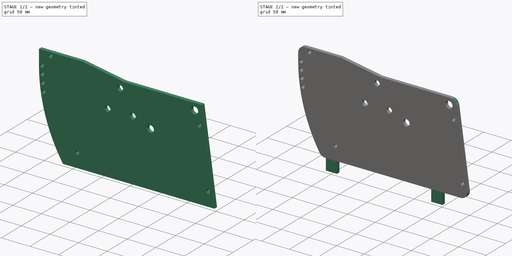
[diagram: build sequence overview — one tinted view per stage of 2, left to right]
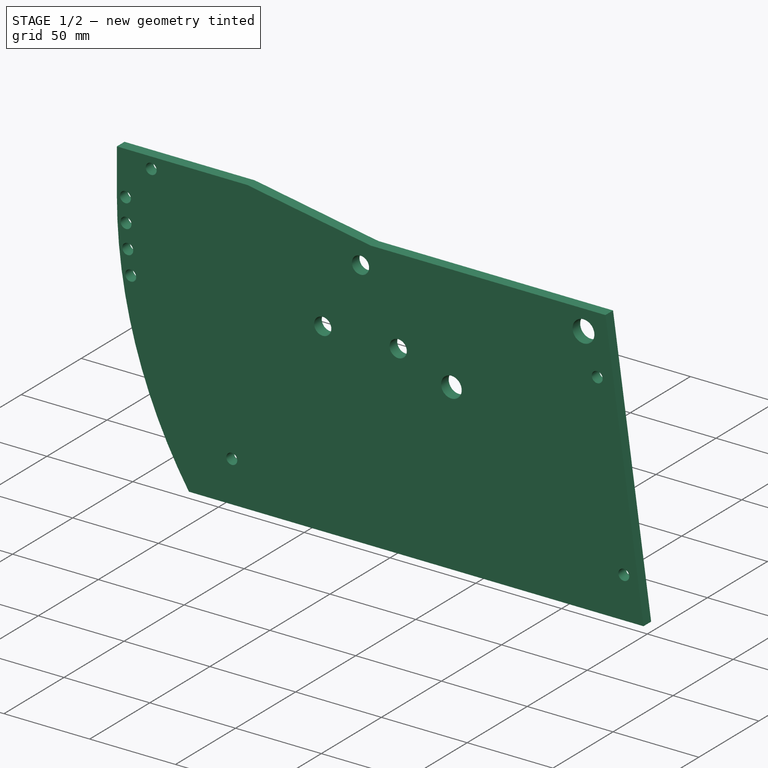
[diagram: stage 1 of 2 — iso view after this stage's code; geometry added in this stage tinted green]
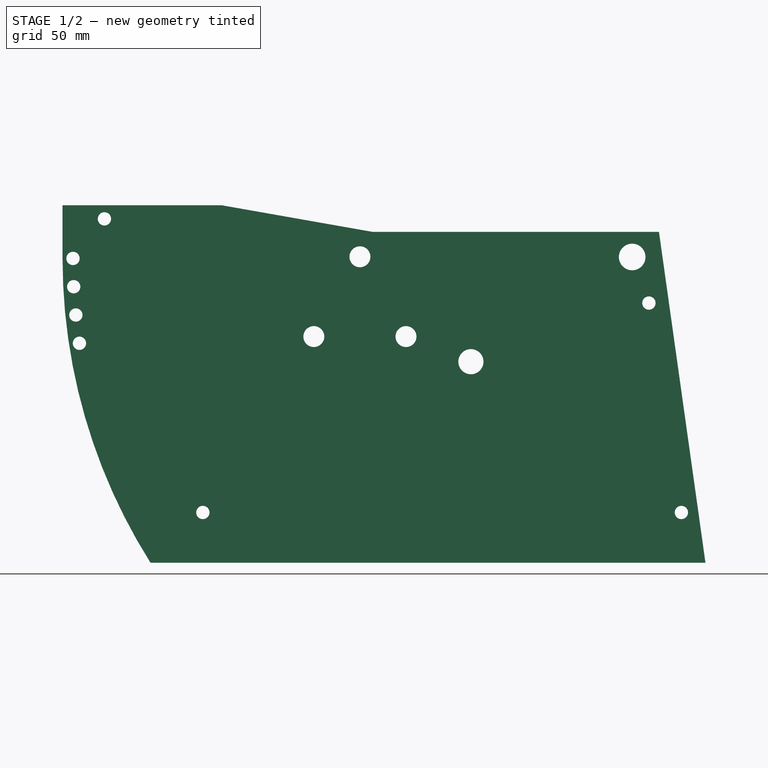
[diagram: stage 1 of 2 — front view after this stage's code; geometry added in this stage tinted green]
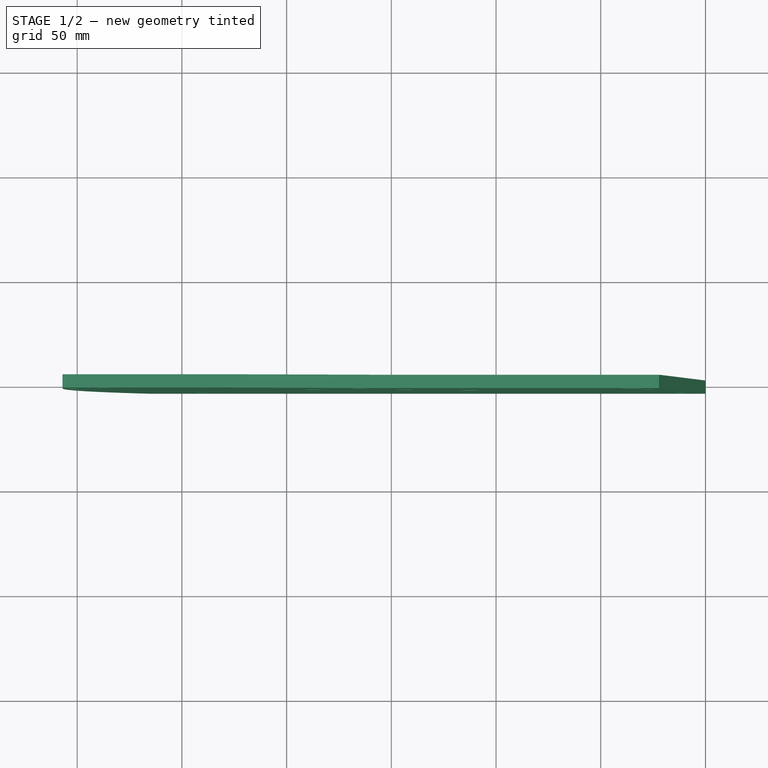
[diagram: stage 1 of 2 — top view after this stage's code; geometry added in this stage tinted green]
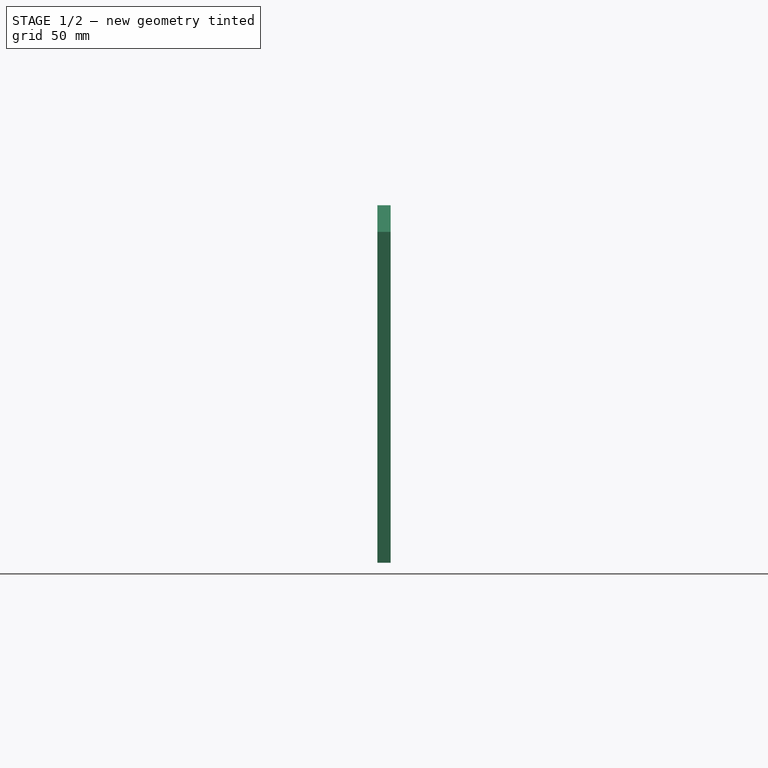
[diagram: stage 1 of 2 — right view after this stage's code; geometry added in this stage tinted green]
FCSTD DOCUMENT  (FreeCAD 0.18R4 (GitTag))
Label: Rib AA
License: All rights reserved
LicenseURL: http://en.wikipedia.org/wiki/All_rights_reserved
objects: Sketcher::SketchObject×3, PartDesign::Pad×2, PartDesign::Pocket×1, PartDesign::Fillet×1, PartDesign::Body×1, App::Part×1
note: 11 computed .brp shape members not serialized (recipe doc carries the construction recipe); baked Part::Feature solids carry a one-line shape summary decoded from their .brp

FEATURE [Sketcher::SketchObject] Sketch
  MapMode = 5
  Placement = pos=(0,0,0) rot=(1,0,0;1.5708rad)
  Support = -> [XZ_Plane001]
  sketch-geometry (7):
    g0: LineSegment StartX=0 StartY=0 StartZ=0 EndX=-22.2055 EndY=158 EndZ=0
    g1: LineSegment StartX=0 StartY=0 StartZ=0 EndX=-265 EndY=0 EndZ=0
    g2: ArcOfCircle CenterX=-35 CenterY=145.203 CenterZ=0 NormalX=0 NormalY=0 NormalZ=1 AngleXU=0 Radius=272 StartAngle=3.14159 EndAngle=3.70472
    g3: LineSegment StartX=-307 StartY=145.203 StartZ=0 EndX=-307 EndY=170.7 EndZ=0
    g4: LineSegment StartX=-307 StartY=170.7 StartZ=0 EndX=-231 EndY=170.7 EndZ=0
    g5: LineSegment StartX=-231 StartY=170.7 StartZ=0 EndX=-159 EndY=158 EndZ=0
    g6: LineSegment StartX=-159 StartY=158 StartZ=0 EndX=-22.2055 EndY=158 EndZ=0
  constraints (20):
    c: Coincident(g-1,g0)
    c: DistanceY(g0,g0) = 158
    c: Coincident(g0,g1)
    c: PointOnObject(g1,g-1)
    c: Coincident(g2,g1)
    c: Vertical(g3)
    c: Coincident(g3,g4)
    c: Horizontal(g4)
    c: Coincident(g4,g5)
    c: Coincident(g5,g6)
    c: Horizontal(g6)
    c: Coincident(g6,g0)
    c: DistanceX(g1,g1) = 265
    c: Angle(g0,g1) = 1.43117
    c: Radius(g2) = 272
    c: Tangent(g3,g2) = 1.5708
    c: DistanceY(g0,g4) = 12.7
    c: DistanceX(g3,g4) = 76
    c: DistanceX(g4,g5) = 72
    c: DistanceX(g3,g0) = 307
FEATURE [PartDesign::Pad] Pad
  Length = 6.35
  Length2 = 100
  Midplane = true
  Placement = pos=(0,0,0) rot=(1,0,0;1.5708rad)
  Profile = -> Sketch
  Refine = true
  Type = 0
FEATURE [Sketcher::SketchObject] Sketch001
  ExternalGeometry = -> [Pad]
  MapMode = 5
  Placement = pos=(0,0,0) rot=(1,0,0;1.5708rad)
  Support = -> [XZ_Plane001]
  sketch-geometry (19):
    g0: Circle [constr] CenterX=-35 CenterY=145.203 CenterZ=0 NormalX=0 NormalY=0 NormalZ=1 AngleXU=0 Radius=267
    g1: Circle CenterX=-302 CenterY=145.3 CenterZ=0 NormalX=0 NormalY=0 NormalZ=1 AngleXU=0 Radius=3.175
    g2: Circle CenterX=-301.663 CenterY=131.8 CenterZ=0 NormalX=0 NormalY=0 NormalZ=1 AngleXU=0 Radius=3.175
    g3: Circle CenterX=-300.641 CenterY=118.3 CenterZ=0 NormalX=0 NormalY=0 NormalZ=1 AngleXU=0 Radius=3.175
    g4: Circle CenterX=-298.925 CenterY=104.8 CenterZ=0 NormalX=0 NormalY=0 NormalZ=1 AngleXU=0 Radius=3.175
    g5: Circle CenterX=-287 CenterY=164.2 CenterZ=0 NormalX=0 NormalY=0 NormalZ=1 AngleXU=0 Radius=3.175
    g6: Circle CenterX=-240 CenterY=24 CenterZ=0 NormalX=0 NormalY=0 NormalZ=1 AngleXU=0 Radius=3.175
    g7: Circle CenterX=-11.5 CenterY=24 CenterZ=0 NormalX=0 NormalY=0 NormalZ=1 AngleXU=0 Radius=3.175
    g8: Circle CenterX=-27 CenterY=124 CenterZ=0 NormalX=0 NormalY=0 NormalZ=1 AngleXU=0 Radius=3.175
    g9: Circle CenterX=-35 CenterY=146 CenterZ=0 NormalX=0 NormalY=0 NormalZ=1 AngleXU=0 Radius=6.35
    g10: Circle CenterX=-187 CenterY=108 CenterZ=0 NormalX=0 NormalY=0 NormalZ=1 AngleXU=0 Radius=5
    g11: Circle CenterX=-143 CenterY=108 CenterZ=0 NormalX=0 NormalY=0 NormalZ=1 AngleXU=0 Radius=5
    g12: Circle [constr] CenterX=-165 CenterY=120.7 CenterZ=0 NormalX=0 NormalY=0 NormalZ=1 AngleXU=0 Radius=5
    g13: Circle CenterX=-165 CenterY=146.1 CenterZ=0 NormalX=0 NormalY=0 NormalZ=1 AngleXU=0 Radius=5
    g14: LineSegment [constr] StartX=-165 StartY=146.1 StartZ=0 EndX=-165 EndY=120.7 EndZ=0
    g15: LineSegment [constr] StartX=-165 StartY=120.7 StartZ=0 EndX=-165 EndY=108 EndZ=0
    g16: LineSegment [constr] StartX=-165 StartY=108 StartZ=0 EndX=-143 EndY=108 EndZ=0
    g17: LineSegment [constr] StartX=-187 StartY=108 StartZ=0 EndX=-165 EndY=108 EndZ=0
    g18: Circle CenterX=-112 CenterY=96 CenterZ=0 NormalX=0 NormalY=0 NormalZ=1 AngleXU=0 Radius=6
  constraints (53):
    c: Radius(g0) = 267
    c: Coincident(g0,g-3)
    c: PointOnObject(g1,g0)
    c: PointOnObject(g3,g0)
    c: Equal(g3,g2)
    c: Equal(g2,g1)
    c: Radius(g1) = 3.175
    c: DistanceY(g1,g-4) = 25.4
    c: PointOnObject(g2,g0)
    c: DistanceY(g2,g1) = 13.5
    c: DistanceY(g3,g2) = 13.5
    c: DistanceY(g4,g3) = 13.5
    c: PointOnObject(g4,g0)
    c: Equal(g4,g3)
    c: DistanceX(g-4,g5) = 20
    c: Equal(g5,g1)
    c: DistanceY(g5,g-4) = 6.5
    c: Vertical(g13,g12)
    c: Coincident(g14,g13)
    c: Coincident(g14,g12)
    c: Coincident(g14,g15)
    c: Vertical(g15)
    c: Coincident(g15,g16)
    c: Coincident(g16,g11)
    c: Coincident(g17,g10)
    c: Coincident(g17,g15)
    c: Horizontal(g17)
    c: Horizontal(g16)
    c: Equal(g16,g17)
    c: DistanceY(g12,g13) = 25.4
    c: DistanceY(g15,g15) = 12.7
    c: DistanceY(g-1,g10) = 108
    c: DistanceX(g15,g-1) = 165
    c: Radius(g13) = 5
    c: Equal(g11,g12)
    c: Equal(g12,g13)
    c: Equal(g13,g10)
    c: DistanceY(g-1,g6) = 24
    c: DistanceX(g6,g-1) = 240
    c: Equal(g6,g4)
    c: Radius(g9) = 6.35
    c: Equal(g8,g5)
    c: Equal(g7,g8)
    c: DistanceY(g-1,g7) = 24
    c: DistanceX(g7,g-1) = 11.5
    c: DistanceY(g-1,g8) = 124
    c: DistanceX(g8,g-1) = 27
    c: DistanceY(g-1,g9) = 146
    c: DistanceX(g9,g-1) = 35
    c: DistanceX(g17,g17) = 22
    c: DistanceX(g18,g-1) = 112
    c: Radius(g18) = 6
    c: DistanceY(g-1,g18) = 96
FEATURE [PartDesign::Pocket] Pocket
  BaseFeature = -> Pad
  Length = 5
  Length2 = 100
  Midplane = true
  Placement = pos=(0,0,0) rot=(1,0,0;1.5708rad)
  Profile = -> Sketch001
  Refine = true
  Type = 1
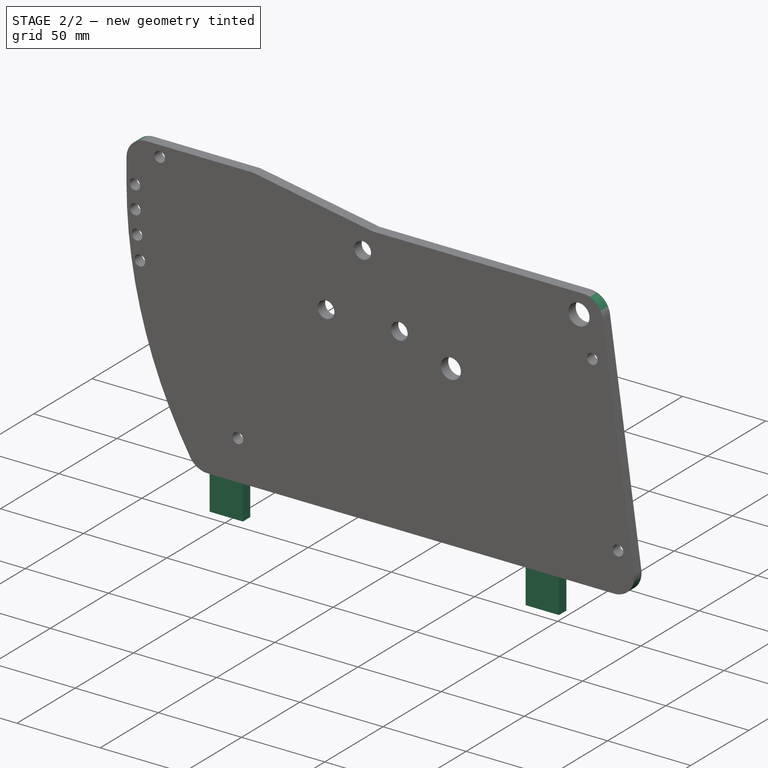
[diagram: stage 2 of 2 — iso view after this stage's code; geometry added in this stage tinted green]
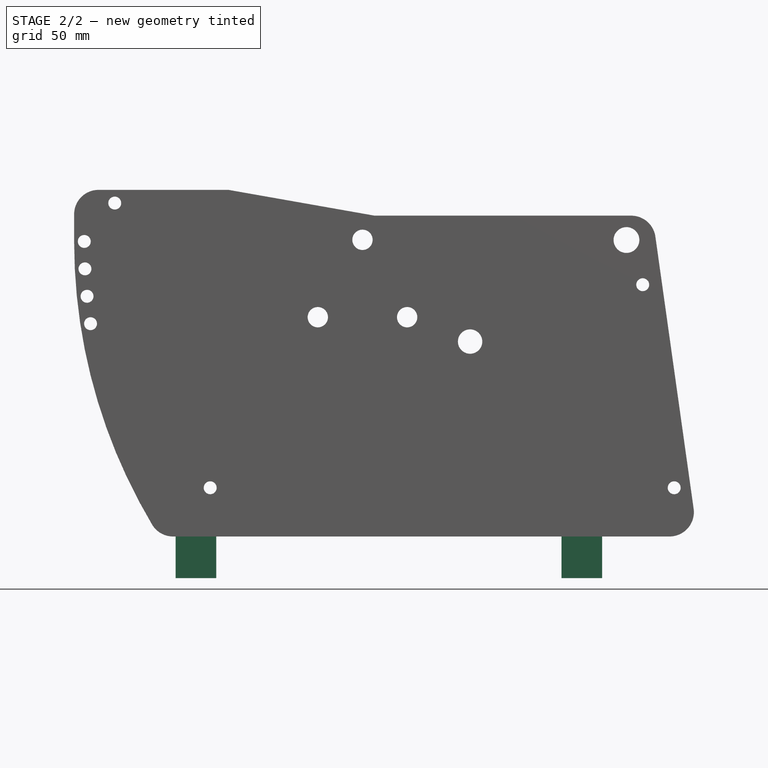
[diagram: stage 2 of 2 — front view after this stage's code; geometry added in this stage tinted green]
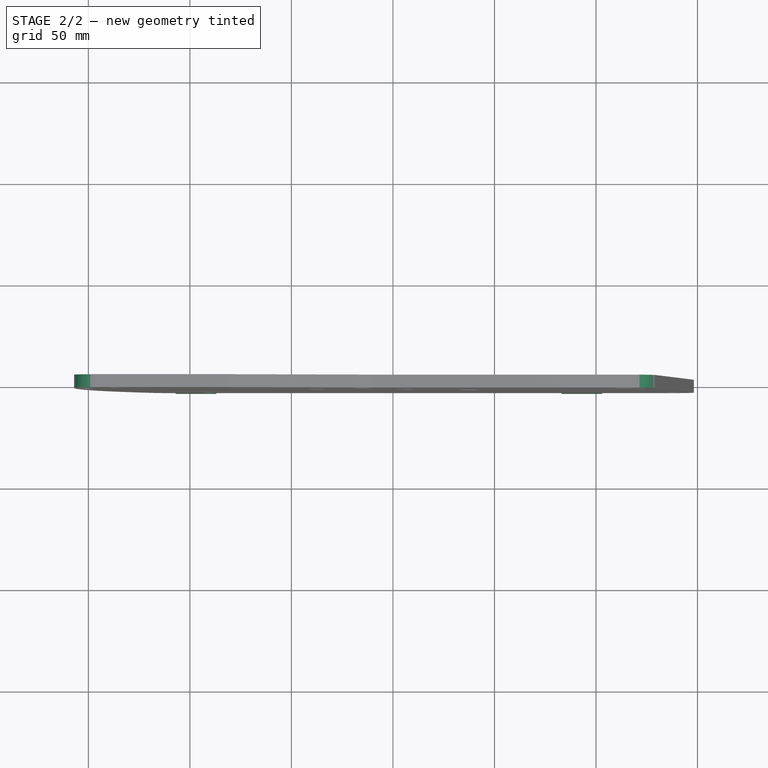
[diagram: stage 2 of 2 — top view after this stage's code; geometry added in this stage tinted green]
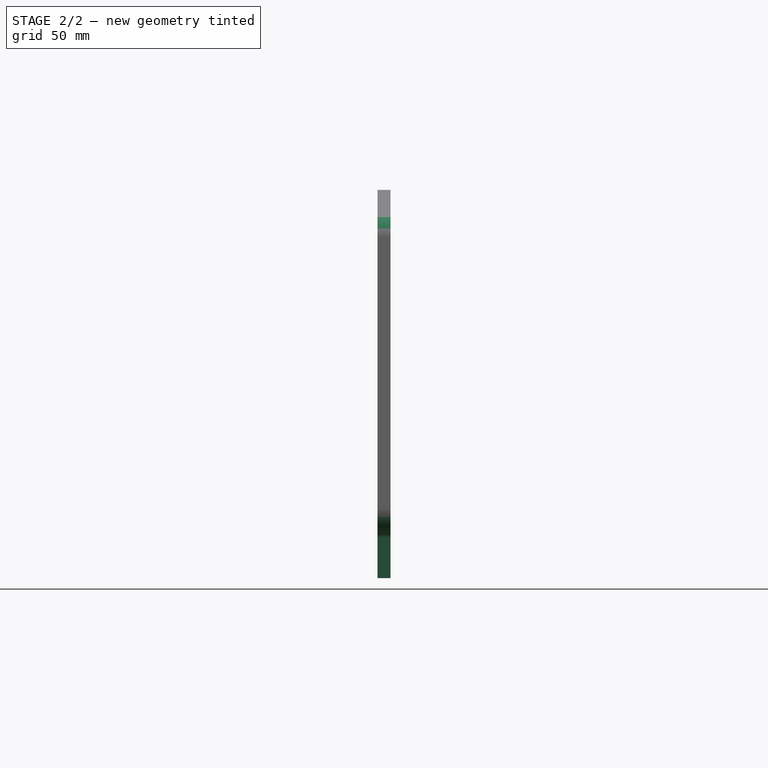
[diagram: stage 2 of 2 — right view after this stage's code; geometry added in this stage tinted green]
FEATURE [PartDesign::Fillet] Fillet
  Base = -> Pocket [Edge2,Edge1,Edge5,Edge47]
  BaseFeature = -> Pocket
  Placement = pos=(0,0,0) rot=(1,0,0;1.5708rad)
  Radius = 12
FEATURE [Sketcher::SketchObject] Sketch002
  MapMode = 5
  Placement = pos=(0,0,0) rot=(1,0,0;1.5708rad)
  Support = -> [XZ_Plane001]
  sketch-geometry (8):
    g0: LineSegment StartX=-237 StartY=0 StartZ=0 EndX=-257 EndY=0 EndZ=0
    g1: LineSegment StartX=-257 StartY=0 StartZ=0 EndX=-257 EndY=-20.5 EndZ=0
    g2: LineSegment StartX=-257 StartY=-20.5 StartZ=0 EndX=-237 EndY=-20.5 EndZ=0
    g3: LineSegment StartX=-237 StartY=-20.5 StartZ=0 EndX=-237 EndY=0 EndZ=0
    g4: LineSegment StartX=-47 StartY=0 StartZ=0 EndX=-67 EndY=0 EndZ=0
    g5: LineSegment StartX=-67 StartY=0 StartZ=0 EndX=-67 EndY=-20.5 EndZ=0
    g6: LineSegment StartX=-67 StartY=-20.5 StartZ=0 EndX=-47 EndY=-20.5 EndZ=0
    g7: LineSegment StartX=-47 StartY=-20.5 StartZ=0 EndX=-47 EndY=0 EndZ=0
  constraints (24):
    c: Coincident(g0,g1)
    c: Coincident(g1,g2)
    c: Coincident(g2,g3)
    c: Coincident(g3,g0)
    c: Horizontal(g0)
    c: Horizontal(g2)
    c: Vertical(g1)
    c: Vertical(g3)
    c: Coincident(g4,g5)
    c: Coincident(g5,g6)
    c: Coincident(g6,g7)
    c: Coincident(g7,g4)
    c: Horizontal(g4)
    c: Horizontal(g6)
    c: Vertical(g5)
    c: Vertical(g7)
    c: PointOnObject(g4,g-1)
    c: Equal(g0,g4)
    c: Equal(g5,g1)
    c: PointOnObject(g0,g-1)
    c: DistanceX(g2,g2) = 20
    c: DistanceX(g4,g-1) = 47
    c: DistanceY(g7,g7) = 20.5
    c: DistanceX(g2,g5) = 170
FEATURE [PartDesign::Pad] Pad001
  BaseFeature = -> Fillet
  Length = 6.35
  Length2 = 100
  Midplane = true
  Placement = pos=(0,0,0) rot=(1,0,0;1.5708rad)
  Profile = -> Sketch002
  Refine = true
  Type = 0
FEATURE [PartDesign::Body] Body  label="Rib"
  Group = -> [Sketch,Pad,Sketch001,Pocket,Fillet,Sketch002,Pad001]
  Origin = -> Origin001
  Tip = -> Pad001
FEATURE [App::Part] Part  label="Rib AB"
  Group = -> [Body]
  Origin = -> Origin
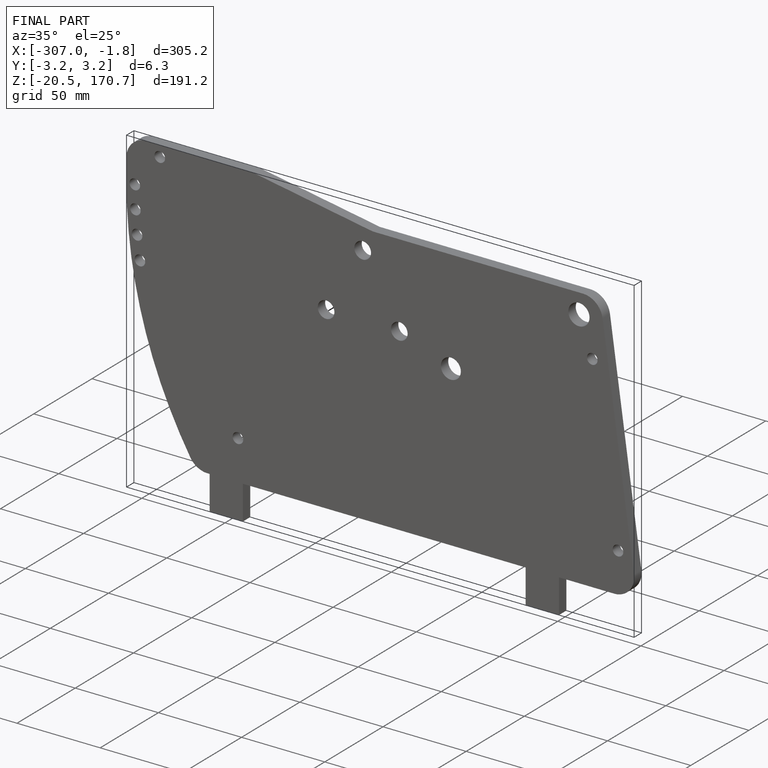
[diagram: finished part — iso view with bounding-box wireframe]
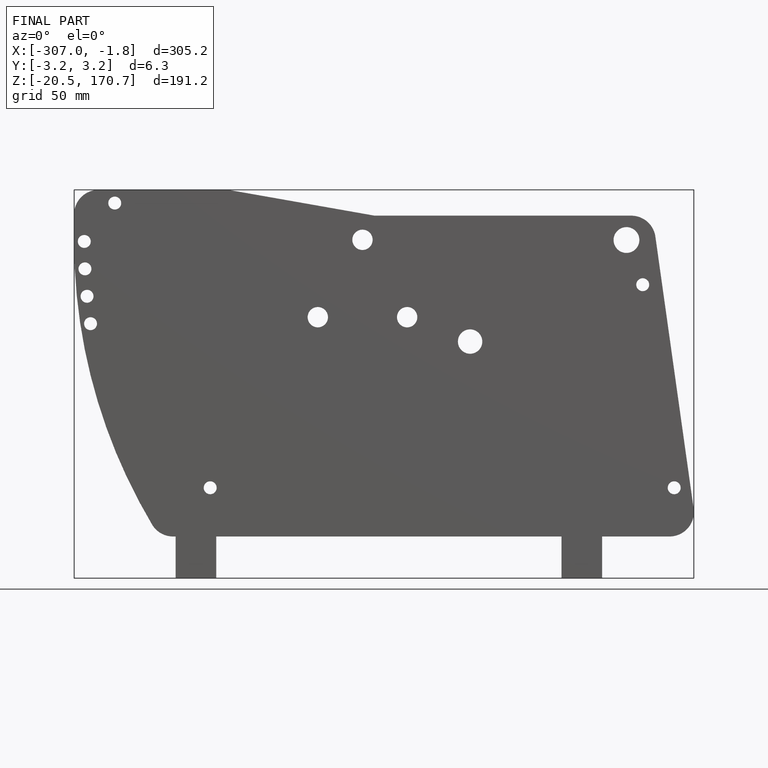
[diagram: finished part — front view with bounding-box wireframe]
